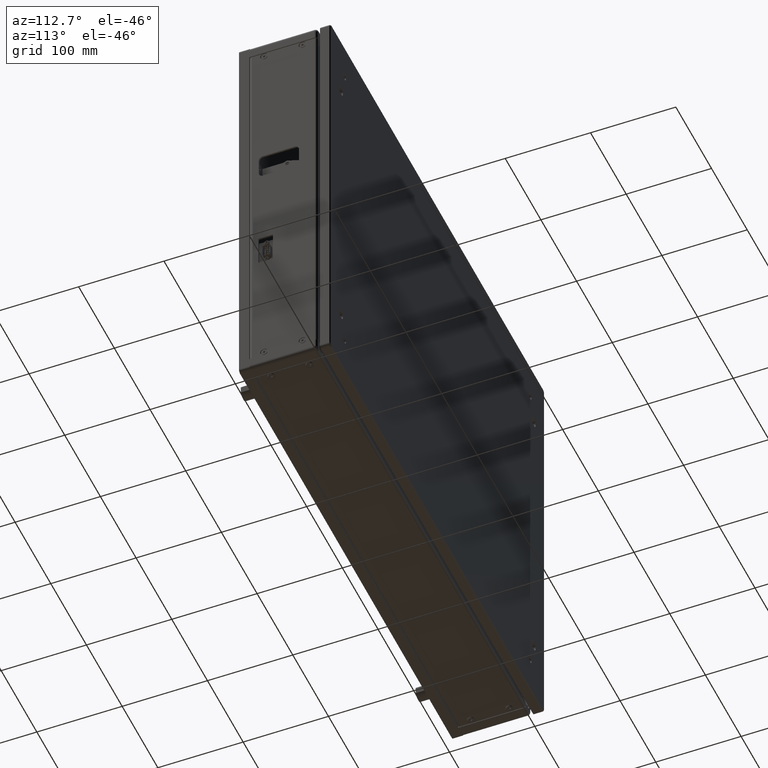
[diagram: clean part render]
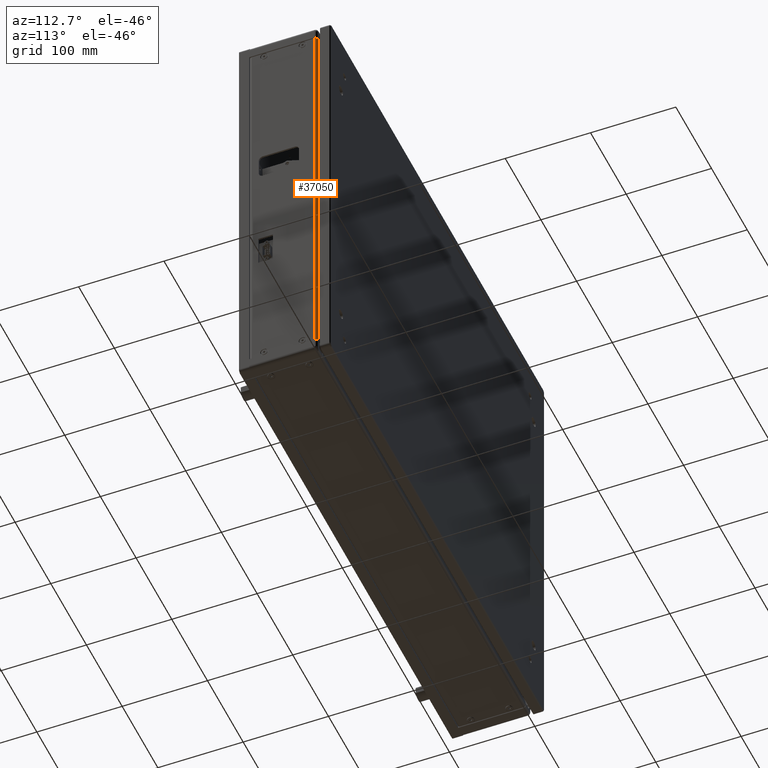
[diagram: same view with one face highlighted and labeled with its STEP entity id]
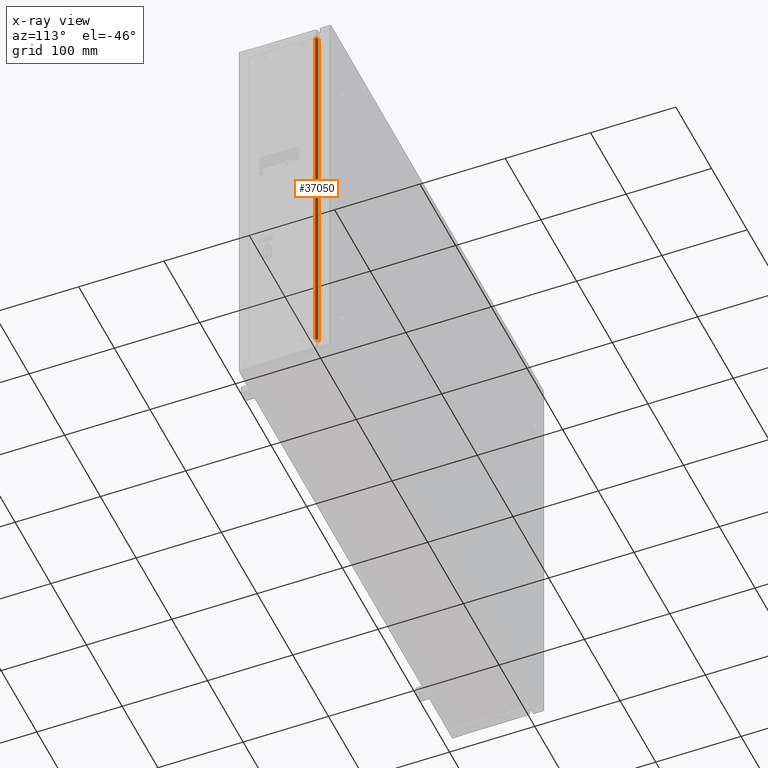
[diagram: x-ray of the same camera — body ghosted, the highlighted face saturated]
A machine part, auxiliary view. The second image highlights one B-rep face of the part: STEP entity #37050.
The next image is the same camera in x-ray: the body ghosted, the highlighted face saturated — about 0% of this face is hidden behind the body in this view.
In plain terms, the highlighted cylindrical surface (edge-blend (fillet) strip) has radius 2.7366 mm, axis along (-0, -0, -1).
Its self-contained STEP definition (entity closure, byte-faithful):
#819 = DIRECTION ( 'NONE',  ( 3.504141421473149345E-16, 7.272311470006200830E-31, 1.000000000000000000 ) ) ;
#1268 = CARTESIAN_POINT ( 'NONE',  ( 303.9512755979889107, 94.90058110050637197, 310.4999999999998295 ) ) ;
#2224 = CARTESIAN_POINT ( 'NONE',  ( 301.2146755979890145, 94.90058110050637197, 779.4999999999997726 ) ) ;
#4599 = CARTESIAN_POINT ( 'NONE',  ( 303.9512755979889107, 94.90058110050637197, 310.4999999999998295 ) ) ;
#4868 = CARTESIAN_POINT ( 'NONE',  ( 301.2146755979888439, 94.90058110050637197, 310.4999999999998295 ) ) ;
#7335 = CIRCLE ( 'NONE', #33892, 2.736600000000033450 ) ;
#8305 = DIRECTION ( 'NONE',  ( 3.504141421473149345E-16, 7.272311470006200830E-31, 1.000000000000000000 ) ) ;
#8512 = EDGE_CURVE ( 'NONE', #14798, #29794, #28394, .T. ) ;
#8521 = VECTOR ( 'NONE', #16132, 1000.000000000000000 ) ;
#9170 = VERTEX_POINT ( 'NONE', #21200 ) ;
#10849 = EDGE_CURVE ( 'NONE', #29579, #9170, #23355, .T. ) ;
#12123 = EDGE_LOOP ( 'NONE', ( #17550, #19774, #29234, #20477 ) ) ;
#14331 = DIRECTION ( 'NONE',  ( 1.000000000000000000, 0.000000000000000000, 0.000000000000000000 ) ) ;
#14798 = VERTEX_POINT ( 'NONE', #4599 ) ;
#15692 = CARTESIAN_POINT ( 'NONE',  ( 301.2146755979888439, 94.90058110050637197, 310.4999999999998295 ) ) ;
#16132 = DIRECTION ( 'NONE',  ( 3.504141421473149345E-16, 7.272311470006200830E-31, 1.000000000000000000 ) ) ;
#16972 = DIRECTION ( 'NONE',  ( 1.000000000000000000, 0.000000000000000000, 0.000000000000000000 ) ) ;
#17423 = CARTESIAN_POINT ( 'NONE',  ( 301.2146755979888439, 97.63718110050636767, 310.4999999999998295 ) ) ;
#17539 = CYLINDRICAL_SURFACE ( 'NONE', #37090, 2.736599999999977939 ) ;
#17550 = ORIENTED_EDGE ( 'NONE', *, *, #10849, .T. ) ;
#18790 = CARTESIAN_POINT ( 'NONE',  ( 303.9512755979890812, 94.90058110050637197, 779.4999999999998863 ) ) ;
#19774 = ORIENTED_EDGE ( 'NONE', *, *, #32419, .F. ) ;
#20477 = ORIENTED_EDGE ( 'NONE', *, *, #36531, .T. ) ;
#21200 = CARTESIAN_POINT ( 'NONE',  ( 301.2146755979890145, 97.63718110050636767, 779.4999999999997726 ) ) ;
#21815 = DIRECTION ( 'NONE',  ( 1.000000000000000000, 0.000000000000000000, 0.000000000000000000 ) ) ;
#21887 = CIRCLE ( 'NONE', #37715, 2.736599999999977939 ) ;
#23355 = LINE ( 'NONE', #28901, #26308 ) ;
#23673 = FACE_OUTER_BOUND ( 'NONE', #12123, .T. ) ;
#26308 = VECTOR ( 'NONE', #8305, 1000.000000000000000 ) ;
#28394 = LINE ( 'NONE', #1268, #8521 ) ;
#28765 = DIRECTION ( 'NONE',  ( 3.504141421473149345E-16, 7.272311470006200830E-31, 1.000000000000000000 ) ) ;
#28901 = CARTESIAN_POINT ( 'NONE',  ( 301.2146755979888439, 97.63718110050636767, 310.4999999999998295 ) ) ;
#29234 = ORIENTED_EDGE ( 'NONE', *, *, #8512, .F. ) ;
#29579 = VERTEX_POINT ( 'NONE', #17423 ) ;
#29794 = VERTEX_POINT ( 'NONE', #18790 ) ;
#32419 = EDGE_CURVE ( 'NONE', #29794, #9170, #7335, .T. ) ;
#32571 = DIRECTION ( 'NONE',  ( -3.504141421473149345E-16, -7.272311470006200830E-31, -1.000000000000000000 ) ) ;
#33892 = AXIS2_PLACEMENT_3D ( 'NONE', #2224, #28765, #14331 ) ;
#36531 = EDGE_CURVE ( 'NONE', #14798, #29579, #21887, .T. ) ;
#37050 = ADVANCED_FACE ( 'NONE', ( #23673 ), #17539, .T. ) ;
#37090 = AXIS2_PLACEMENT_3D ( 'NONE', #4868, #32571, #16972 ) ;
#37715 = AXIS2_PLACEMENT_3D ( 'NONE', #15692, #819, #21815 ) ;